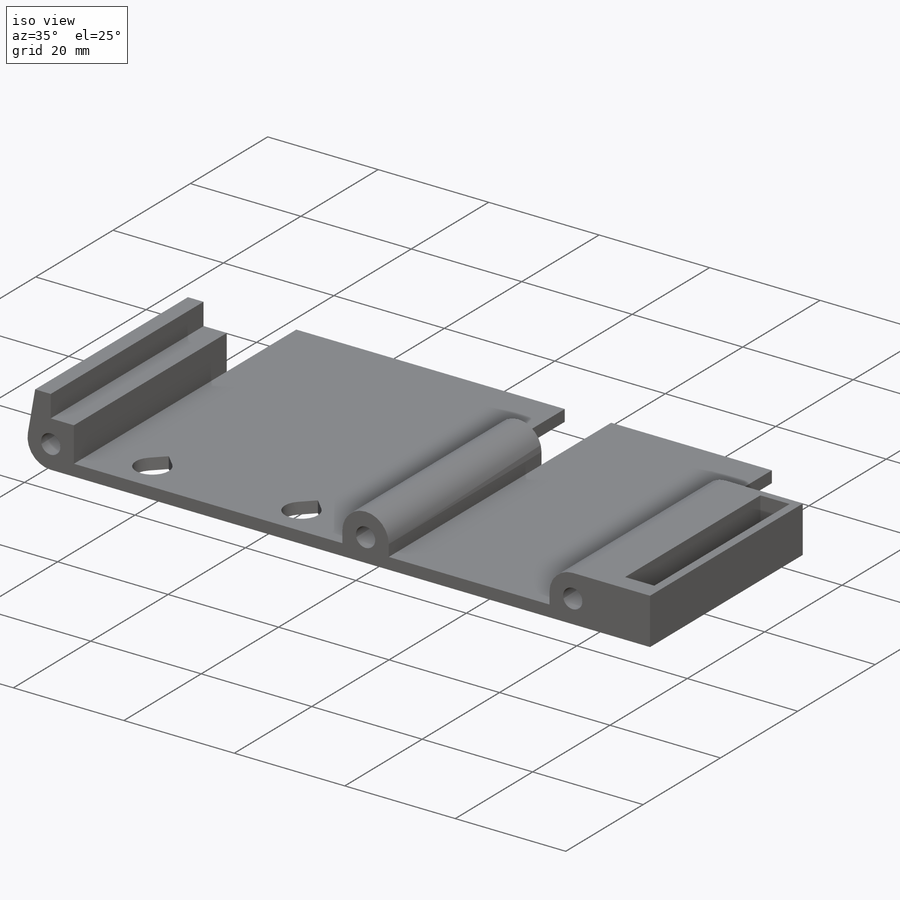
[diagram: iso view]
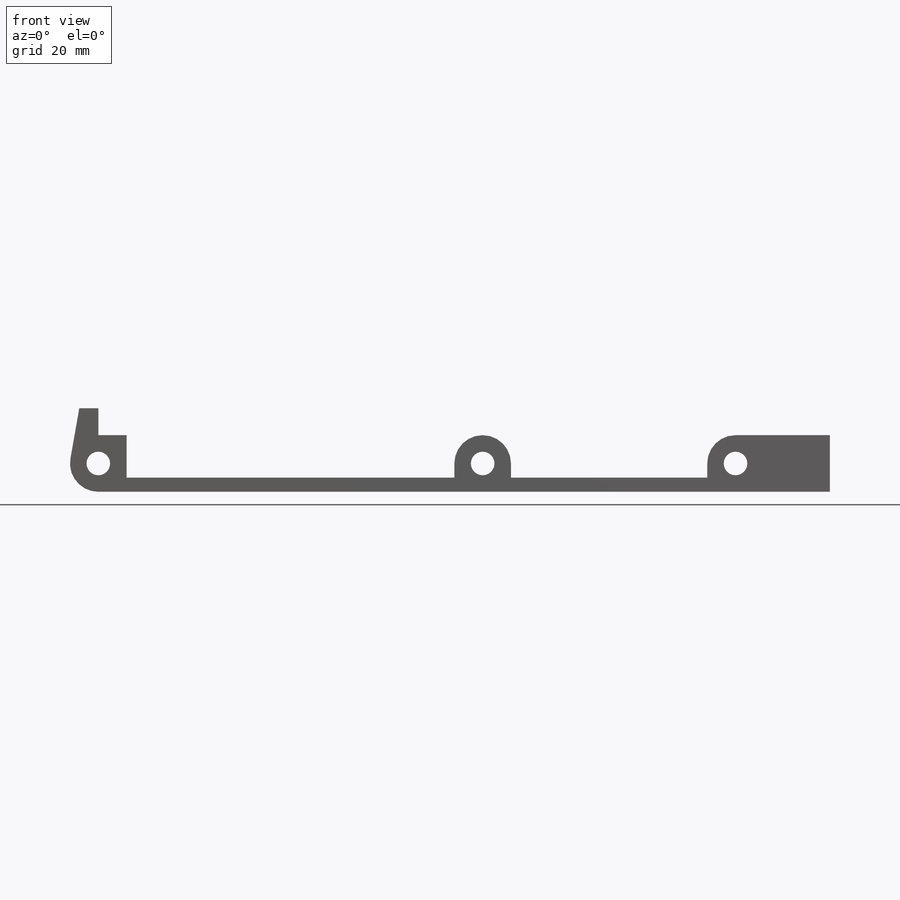
[diagram: front view]
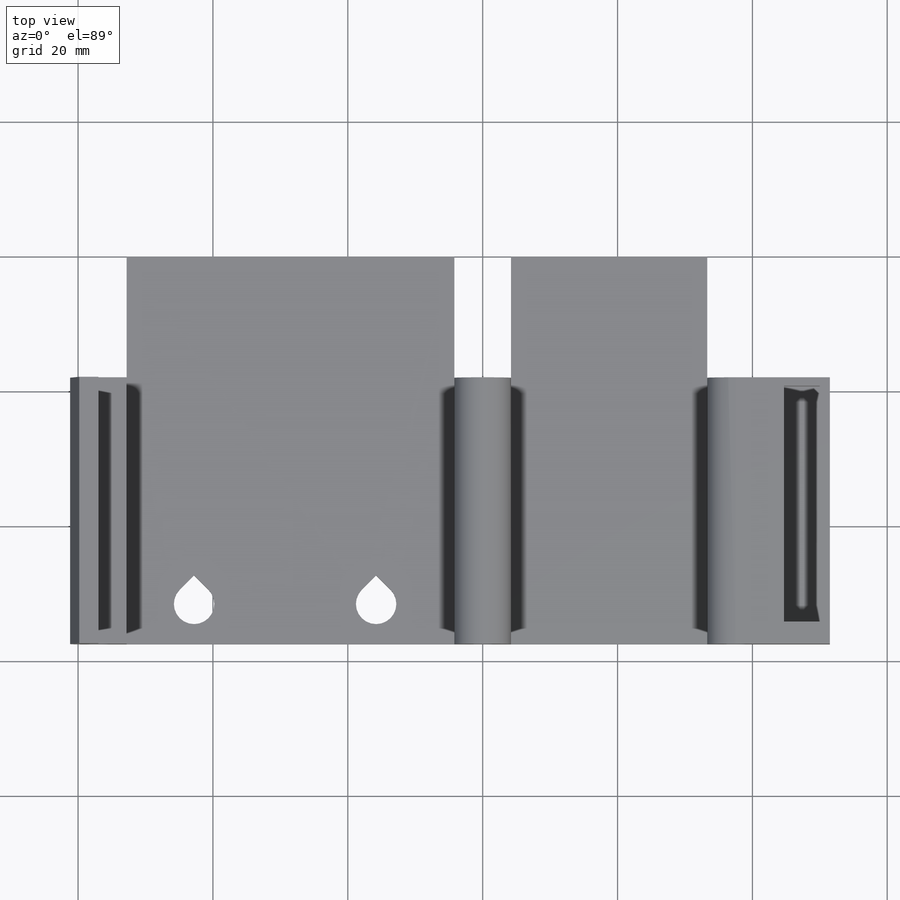
[diagram: top view]
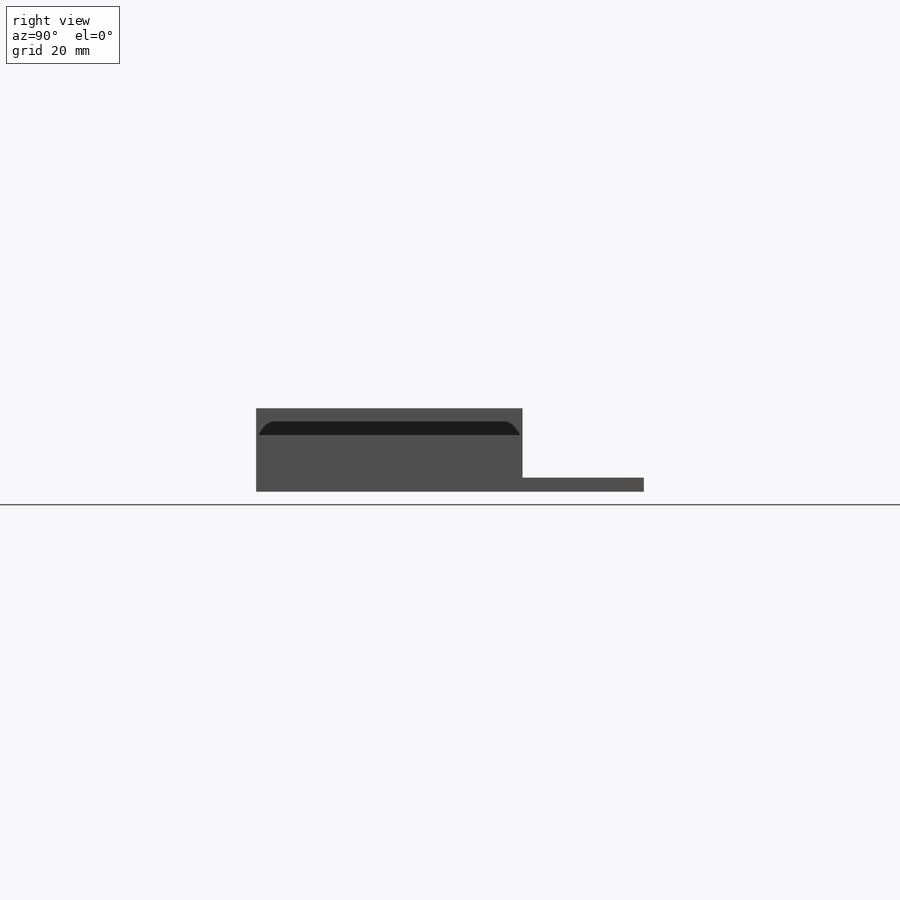
[diagram: right view]
SOLIDWORKS PART (.sldprt)
format: sldprt  version: not decoded by parser v0  size: 292,864 bytes
history: native  units: mm
features: sketch x5, cut_extrude x3, extrude x2, material x1, pattern_linear x1 (+13 scaffold rows collapsed)
feature tree (25):
  scaffold x13  (default folders/planes/origin — collapsed)
  material  "Custom Plastic"
  sketch  "Sketch1"  dims[c1.D2=~6.219139mm c1.D3=3.5mm c1.D1=57.0mm c2.D2=37.5mm c2.D4=4.2mm c2.D5=4.0mm c2.D6=2.1mm c2.D7=~9.089138mm c3.D7=10.0deg c3.D8=4.0mm]
  extrude  "Boss-Extrude1"  Depth=57.5mm
  sketch  "Sketch2"  dims[D1=10.0mm D2=40.0mm]
  extrude  "Boss-Extrude2"  [1 undecoded]
  sketch  "Sketch3"  dims[D1=5.3mm D2=8.5mm D3=3.25mm D4=35.0mm]
  cut_extrude  "Cut-Extrude1"  Depth=3mm
  sketch  "Sketch4"  dims[c1.D1=6.0mm c1.D2=6.0mm c1.D3=3.0mm c1.D4=5.0mm c2.D3=3.0mm c2.D4=10.0mm]
  cut_extrude  "Cut-Extrude2"  [1 undecoded]
  sketch  "Sketch5"
  cut_extrude  "Cut-Extrude3"  Depth=18mm
  pattern_linear  "LPattern1"  Count1=2 Count2=1 Spacing1=27mm Spacing2=10mm
decode coverage: 8 of 11 modeling features carry decoded parameters
note: ~ marks probable driven/reference dimensions
note: 2 parameter values undecoded
note: suppression state not decoded; provenance and decode notes live in map.json
